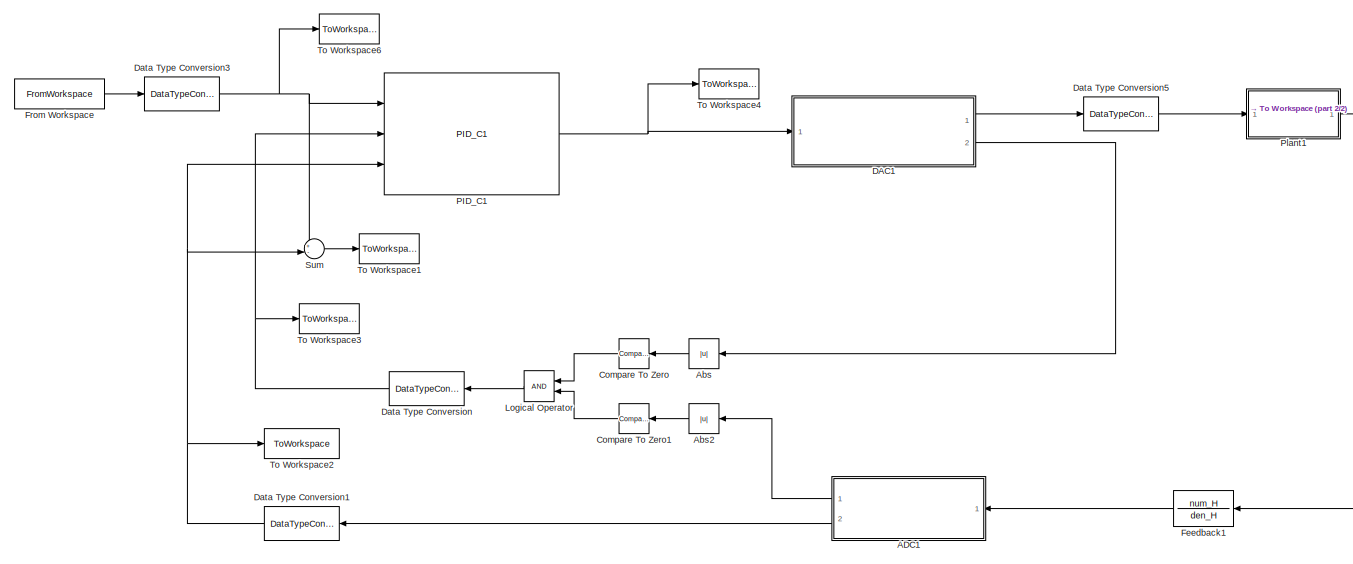
[diagram: root canvas - part 1/2, most of the canvas]
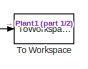
[diagram: root canvas - part 2/2, top right region]
MODEL slx_23c4c79b5cf2
KIND model
CONFIG AbsTol = auto
CONFIG EnableMultiTasking = on
CONFIG FixedStep = T
CONFIG MaxStep = auto
CONFIG MinStep = auto
CONFIG RelTol = 1e-3
CONFIG SampleTimeConstraint = Unconstrained
CONFIG Solver = ode45
CONFIG SolverName = ode45
CONFIG StartTime = 0.0
CONFIG StopTime = endtime
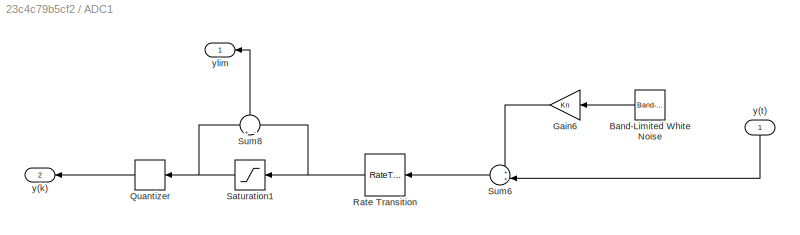
BLOCK [SubSystem] ADC1
  Ports = [1, 2]
  RequestExecContextInheritance = off
  Variant = off
BLOCK [Reference] ADC1/Band-Limited White Noise  REF=simulink/Sources/Band-Limited
White Noise
  Ports = [0, 1]
  SourceBlock = simulink/Sources/Band-Limited\nWhite Noise
  SourceProductBaseCode = SL
  SourceProductName = Simulink
  SourceType = Band-Limited White Noise.
BLOCK [Gain] ADC1/Gain6
  Gain = Kn
  OutDataTypeStr = Inherit: Inherit via internal rule
  ParamDataTypeStr = Inherit: Inherit via internal rule
  SaturateOnIntegerOverflow = off
BLOCK [Quantizer] ADC1/Quantizer
  QuantizationInterval = Qadc
BLOCK [RateTransition] ADC1/Rate Transition
  OutPortSampleTime = T
BLOCK [Saturate] ADC1/Saturation1
  InputPortMap = u0
  LowerLimit = Vadc_min
  Ports = [1, 1]
  UpperLimit = Vadc_max
BLOCK [Sum] ADC1/Sum6
  IconShape = round
  InputSameDT = off
  Inputs = ++|
  OutDataTypeStr = Inherit: Inherit via internal rule
  Ports = [2, 1]
  SaturateOnIntegerOverflow = off
BLOCK [Sum] ADC1/Sum8
  IconShape = round
  InputSameDT = off
  Inputs = +|-
  OutDataTypeStr = Inherit: Inherit via internal rule
  Ports = [2, 1]
  SaturateOnIntegerOverflow = off
BLOCK [Outport] ADC1/y(k)
  IconDisplay = Port number
  Port = 2
BLOCK [Inport] ADC1/y(t)
  IconDisplay = Port number
BLOCK [Outport] ADC1/ylim
  IconDisplay = Port number
BLOCK [Abs] Abs
  SaturateOnIntegerOverflow = off
BLOCK [Abs] Abs2
  SaturateOnIntegerOverflow = off
BLOCK [Reference] Compare To Zero  REF=simulink/Logic and Bit
Operations/Compare
To Zero
  Ports = [1, 1]
  SourceBlock = simulink/Logic and Bit\nOperations/Compare\nTo Zero
  SourceProductBaseCode = SL
  SourceProductName = Simulink
  SourceType = Compare To Zero
BLOCK [Reference] Compare To Zero1  REF=simulink/Logic and Bit
Operations/Compare
To Zero
  Ports = [1, 1]
  SourceBlock = simulink/Logic and Bit\nOperations/Compare\nTo Zero
  SourceProductBaseCode = SL
  SourceProductName = Simulink
  SourceType = Compare To Zero
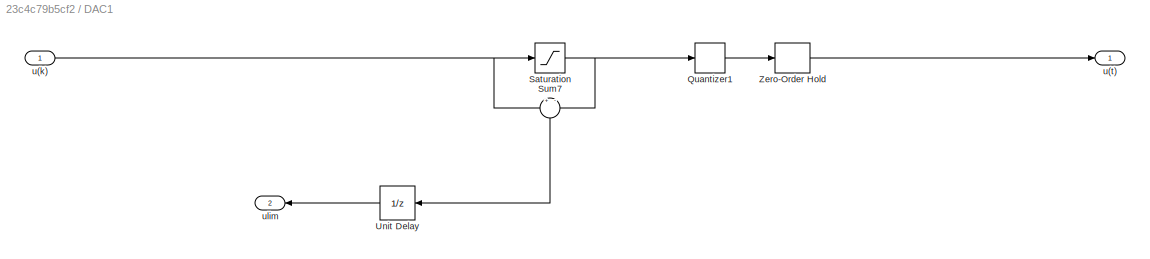
BLOCK [SubSystem] DAC1
  Ports = [1, 2]
  RequestExecContextInheritance = off
  Variant = off
BLOCK [Quantizer] DAC1/Quantizer1
  QuantizationInterval = Qdac
BLOCK [Saturate] DAC1/Saturation
  InputPortMap = u0
  LowerLimit = Umin
  Ports = [1, 1]
  UpperLimit = Umax
BLOCK [Sum] DAC1/Sum7
  IconShape = round
  InputSameDT = off
  Inputs = +|-
  OutDataTypeStr = Inherit: Inherit via internal rule
  Ports = [2, 1]
  SaturateOnIntegerOverflow = off
BLOCK [UnitDelay] DAC1/Unit Delay
  InputProcessing = Elements as channels (sample based)
  SampleTime = -1
BLOCK [ZeroOrderHold] DAC1/Zero-Order Hold
  SampleTime = -1
BLOCK [Inport] DAC1/u(k)
  IconDisplay = Port number
BLOCK [Outport] DAC1/u(t)
  IconDisplay = Port number
BLOCK [Outport] DAC1/ulim
  IconDisplay = Port number
  Port = 2
BLOCK [DataTypeConversion] Data Type Conversion
  OutDataTypeStr = single
  RndMeth = Floor
  SaturateOnIntegerOverflow = off
BLOCK [DataTypeConversion] Data Type Conversion1
  OutDataTypeStr = single
  RndMeth = Floor
BLOCK [DataTypeConversion] Data Type Conversion3
  OutDataTypeStr = single
  RndMeth = Floor
BLOCK [DataTypeConversion] Data Type Conversion5
  OutDataTypeStr = double
  RndMeth = Floor
  SaturateOnIntegerOverflow = off
BLOCK [TransferFcn] Feedback1
  Denominator = den_H
  Numerator = num_H
BLOCK [FromWorkspace] From Workspace
  SampleTime = T
  VariableName = [time, input]
  ZeroCross = on
BLOCK [Logic] Logical Operator
  AllPortsSameDT = off
  OutDataTypeStr = boolean
  Ports = [2, 1]
BLOCK [Reference] PID_C1  REF=DCL/PID_C1
  Ports = [3, 1]
  SourceBlock = DCL/PID_C1
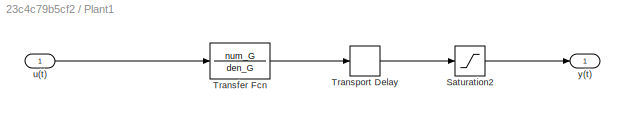
BLOCK [SubSystem] Plant1
  Ports = [1, 1]
  RequestExecContextInheritance = off
  Variant = off
BLOCK [Saturate] Plant1/Saturation2
  InputPortMap = u0
  LowerLimit = Psatmin
  Ports = [1, 1]
  UpperLimit = Psatmax
BLOCK [TransferFcn] Plant1/Transfer Fcn
  Denominator = den_G
  Numerator = num_G
BLOCK [TransportDelay] Plant1/Transport Delay
  BufferSize = 5120
  DelayTime = Tdly
  Ports = [1, 1]
BLOCK [Inport] Plant1/u(t)
  IconDisplay = Port number
BLOCK [Outport] Plant1/y(t)
  IconDisplay = Port number
BLOCK [Sum] Sum
  IconShape = round
  InputSameDT = off
  Inputs = +-|
  OutDataTypeStr = Inherit: Inherit via internal rule
  Ports = [2, 1]
  SaturateOnIntegerOverflow = off
BLOCK [ToWorkspace] To Workspace
  MaxDataPoints = inf
  Ports = [1]
  SampleTime = -1
  SaveFormat = Timeseries
  VariableName = fresponse
BLOCK [ToWorkspace] To Workspace1
  MaxDataPoints = inf
  Ports = [1]
  SampleTime = -1
  VariableName = ferror
BLOCK [ToWorkspace] To Workspace2
  MaxDataPoints = inf
  Ports = [1]
  SampleTime = -1
  VariableName = ffeedback
BLOCK [ToWorkspace] To Workspace3
  MaxDataPoints = inf
  Ports = [1]
  SampleTime = -1
  VariableName = fsat
BLOCK [ToWorkspace] To Workspace4
  MaxDataPoints = inf
  Ports = [1]
  SampleTime = -1
  VariableName = fcontrol
BLOCK [ToWorkspace] To Workspace6
  MaxDataPoints = inf
  Ports = [1]
  SampleTime = -1
  VariableName = finput
LINE ADC1/Band-Limited White Noise:1 -> ADC1/Gain6:1
LINE ADC1/Gain6:1 -> ADC1/Sum6:1
LINE ADC1/Quantizer:1 -> ADC1/y(k):1
NET ADC1/Rate Transition:1 -> ADC1/Saturation1:1, ADC1/Sum8:2
NET ADC1/Saturation1:1 -> ADC1/Quantizer:1, ADC1/Sum8:1
LINE ADC1/Sum6:1 -> ADC1/Rate Transition:1
LINE ADC1/Sum8:1 -> ADC1/ylim:1
LINE ADC1/y(t):1 -> ADC1/Sum6:2
LINE ADC1:1 -> Abs2:1
LINE ADC1:2 -> Data Type Conversion1:1
LINE Abs2:1 -> Compare To Zero1:1
LINE Abs:1 -> Compare To Zero:1
LINE Compare To Zero1:1 -> Logical Operator:2
LINE Compare To Zero:1 -> Logical Operator:1
LINE DAC1/Quantizer1:1 -> DAC1/Zero-Order Hold:1
NET DAC1/Saturation:1 -> DAC1/Quantizer1:1, DAC1/Sum7:2
LINE DAC1/Sum7:1 -> DAC1/Unit Delay:1
LINE DAC1/Unit Delay:1 -> DAC1/ulim:1
LINE DAC1/Zero-Order Hold:1 -> DAC1/u(t):1
NET DAC1/u(k):1 -> DAC1/Saturation:1, DAC1/Sum7:1
LINE DAC1:1 -> Data Type Conversion5:1
LINE DAC1:2 -> Abs:1
NET Data Type Conversion1:1 -> PID_C1:3, Sum:2, To Workspace2:1
NET Data Type Conversion3:1 -> PID_C1:1, Sum:1, To Workspace6:1
LINE Data Type Conversion5:1 -> Plant1:1
NET Data Type Conversion:1 -> PID_C1:2, To Workspace3:1
LINE Feedback1:1 -> ADC1:1
LINE From Workspace:1 -> Data Type Conversion3:1
LINE Logical Operator:1 -> Data Type Conversion:1
NET PID_C1:1 -> DAC1:1, To Workspace4:1
LINE Plant1/Saturation2:1 -> Plant1/y(t):1
LINE Plant1/Transfer Fcn:1 -> Plant1/Transport Delay:1
LINE Plant1/Transport Delay:1 -> Plant1/Saturation2:1
LINE Plant1/u(t):1 -> Plant1/Transfer Fcn:1
NET Plant1:1 -> Feedback1:1, To Workspace:1
LINE Sum:1 -> To Workspace1:1
note: NET lines group one-source signal fan-out (src -> all destinations, sorted); 1:1 wires keep LINE
